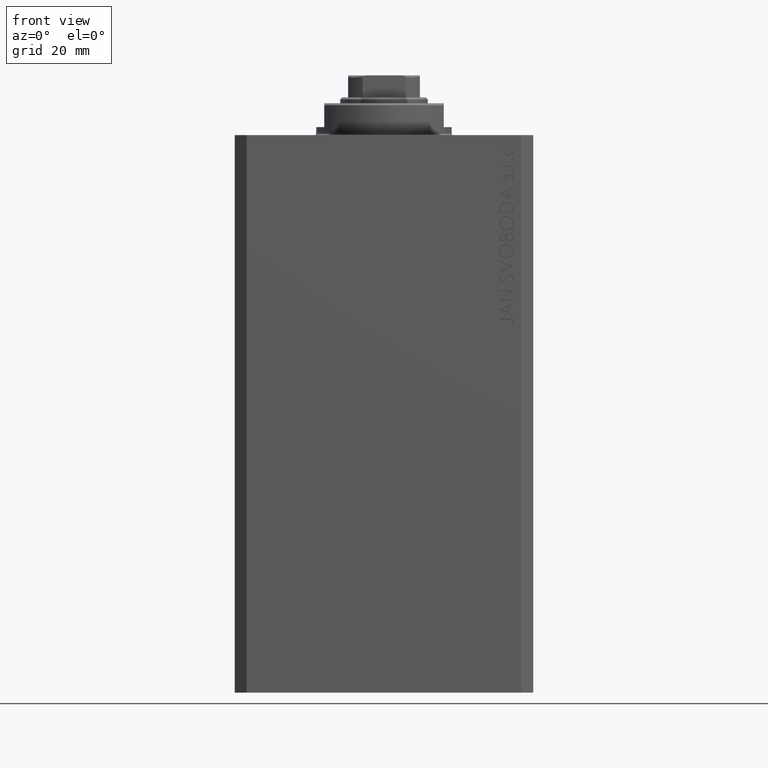
[diagram: clean part render]
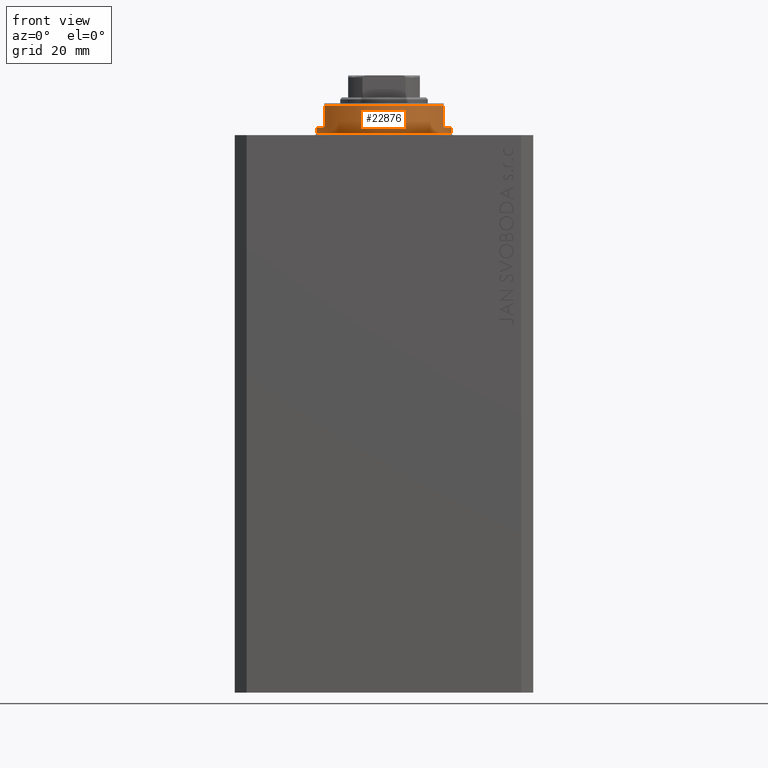
[diagram: same view with one face highlighted and labeled with its STEP entity id]
A machine part, front view. The second image highlights one B-rep face of the part: STEP entity #22876.
In plain terms, the highlighted cylindrical surface (partial cylindrical patch) has radius 17 mm, axis along (0, 0, -1).
Its self-contained STEP definition (entity closure, byte-faithful):
#237 = CYLINDRICAL_SURFACE ( 'NONE', #22639, 17.00000000000000000 ) ;
#2622 = CIRCLE ( 'NONE', #41564, 17.00000000000000000 ) ;
#2678 = CARTESIAN_POINT ( 'NONE',  ( -17.00000000000000000, 2.081899558550500280E-15, -8.000000000000000000 ) ) ;
#2785 = CARTESIAN_POINT ( 'NONE',  ( -15.00000000000000000, -8.000000000000001776, -8.000000000000000000 ) ) ;
#3374 = DIRECTION ( 'NONE',  ( 0.000000000000000000, 0.000000000000000000, -1.000000000000000000 ) ) ;
#3667 = VERTEX_POINT ( 'NONE', #40345 ) ;
#4067 = VERTEX_POINT ( 'NONE', #5834 ) ;
#4586 = EDGE_CURVE ( 'NONE', #4887, #22937, #16653, .T. ) ;
#4887 = VERTEX_POINT ( 'NONE', #32127 ) ;
#5546 = VERTEX_POINT ( 'NONE', #6565 ) ;
#5589 = CIRCLE ( 'NONE', #45310, 17.00000000000000000 ) ;
#5834 = CARTESIAN_POINT ( 'NONE',  ( -15.00000000000000000, -8.000000000000001776, -7.500000000000007105 ) ) ;
#6565 = CARTESIAN_POINT ( 'NONE',  ( -17.00000000000000000, 2.081899558550500280E-15, -2.000000000000000000 ) ) ;
#6816 = CIRCLE ( 'NONE', #44243, 17.00000000000000000 ) ;
#6950 = FACE_OUTER_BOUND ( 'NONE', #20969, .T. ) ;
#7358 = DIRECTION ( 'NONE',  ( -0.000000000000000000, -0.000000000000000000, 1.000000000000000000 ) ) ;
#7414 = CARTESIAN_POINT ( 'NONE',  ( 0.000000000000000000, 0.000000000000000000, -0.5000000000000004441 ) ) ;
#8126 = ORIENTED_EDGE ( 'NONE', *, *, #30019, .T. ) ;
#8453 = DIRECTION ( 'NONE',  ( 0.000000000000000000, 0.000000000000000000, 1.000000000000000000 ) ) ;
#9400 = VECTOR ( 'NONE', #42013, 1000.000000000000000 ) ;
#9692 = VERTEX_POINT ( 'NONE', #43058 ) ;
#10470 = LINE ( 'NONE', #46846, #10661 ) ;
#10529 = DIRECTION ( 'NONE',  ( 1.000000000000000000, 0.000000000000000000, 0.000000000000000000 ) ) ;
#10661 = VECTOR ( 'NONE', #7358, 1000.000000000000000 ) ;
#12028 = VERTEX_POINT ( 'NONE', #23742 ) ;
#12595 = CARTESIAN_POINT ( 'NONE',  ( 15.00000000000000000, -8.000000000000001776, -8.000000000000000000 ) ) ;
#13671 = LINE ( 'NONE', #2678, #40059 ) ;
#13737 = ORIENTED_EDGE ( 'NONE', *, *, #31158, .T. ) ;
#13823 = EDGE_CURVE ( 'NONE', #41080, #5546, #2622, .T. ) ;
#14057 = DIRECTION ( 'NONE',  ( 0.000000000000000000, 0.000000000000000000, -1.000000000000000000 ) ) ;
#14597 = CARTESIAN_POINT ( 'NONE',  ( 0.000000000000000000, 0.000000000000000000, -8.000000000000000000 ) ) ;
#14644 = EDGE_CURVE ( 'NONE', #5546, #9692, #13671, .T. ) ;
#15869 = DIRECTION ( 'NONE',  ( -1.000000000000000000, 0.000000000000000000, 0.000000000000000000 ) ) ;
#16653 = LINE ( 'NONE', #12595, #47072 ) ;
#16989 = ORIENTED_EDGE ( 'NONE', *, *, #46335, .T. ) ;
#19835 = CARTESIAN_POINT ( 'NONE',  ( 15.00000000000000000, -8.000000000000001776, -7.500000000000007105 ) ) ;
#19869 = ORIENTED_EDGE ( 'NONE', *, *, #40660, .F. ) ;
#20825 = CARTESIAN_POINT ( 'NONE',  ( 0.000000000000000000, 0.000000000000000000, -2.000000000000000000 ) ) ;
#20969 = EDGE_LOOP ( 'NONE', ( #40525, #44305, #16989, #40458, #36691, #19869, #13737, #8126 ) ) ;
#22639 = AXIS2_PLACEMENT_3D ( 'NONE', #14597, #25580, #10529 ) ;
#22876 = ADVANCED_FACE ( 'NONE', ( #6950 ), #237, .T. ) ;
#22937 = VERTEX_POINT ( 'NONE', #19835 ) ;
#23267 = CARTESIAN_POINT ( 'NONE',  ( 0.000000000000000000, 0.000000000000000000, -7.500000000000007105 ) ) ;
#23742 = CARTESIAN_POINT ( 'NONE',  ( 17.00000000000000000, 0.000000000000000000, -2.000000000000000000 ) ) ;
#25580 = DIRECTION ( 'NONE',  ( -0.000000000000000000, -0.000000000000000000, 1.000000000000000000 ) ) ;
#28396 = AXIS2_PLACEMENT_3D ( 'NONE', #32229, #14057, #36532 ) ;
#30019 = EDGE_CURVE ( 'NONE', #3667, #9692, #6816, .T. ) ;
#31158 = EDGE_CURVE ( 'NONE', #12028, #3667, #10470, .T. ) ;
#31830 = DIRECTION ( 'NONE',  ( -0.000000000000000000, -0.000000000000000000, 1.000000000000000000 ) ) ;
#32041 = DIRECTION ( 'NONE',  ( -0.000000000000000000, -0.000000000000000000, -1.000000000000000000 ) ) ;
#32127 = CARTESIAN_POINT ( 'NONE',  ( 14.99999999999999645, -8.000000000000003553, -2.000000000000000000 ) ) ;
#32229 = CARTESIAN_POINT ( 'NONE',  ( 0.000000000000000000, 0.000000000000000000, -2.000000000000000000 ) ) ;
#35863 = DIRECTION ( 'NONE',  ( 1.000000000000000000, 0.000000000000000000, 0.000000000000000000 ) ) ;
#36532 = DIRECTION ( 'NONE',  ( -1.000000000000000000, 0.000000000000000000, 0.000000000000000000 ) ) ;
#36601 = DIRECTION ( 'NONE',  ( -1.000000000000000000, 0.000000000000000000, 0.000000000000000000 ) ) ;
#36691 = ORIENTED_EDGE ( 'NONE', *, *, #4586, .F. ) ;
#39586 = CARTESIAN_POINT ( 'NONE',  ( -14.99999999999999645, -8.000000000000003553, -2.000000000000000000 ) ) ;
#40059 = VECTOR ( 'NONE', #31830, 1000.000000000000000 ) ;
#40345 = CARTESIAN_POINT ( 'NONE',  ( 17.00000000000000000, 0.000000000000000000, -0.5000000000000004441 ) ) ;
#40458 = ORIENTED_EDGE ( 'NONE', *, *, #45385, .T. ) ;
#40525 = ORIENTED_EDGE ( 'NONE', *, *, #14644, .F. ) ;
#40660 = EDGE_CURVE ( 'NONE', #12028, #4887, #44442, .T. ) ;
#41080 = VERTEX_POINT ( 'NONE', #39586 ) ;
#41564 = AXIS2_PLACEMENT_3D ( 'NONE', #20825, #3374, #36601 ) ;
#41769 = DIRECTION ( 'NONE',  ( 0.000000000000000000, 0.000000000000000000, -1.000000000000000000 ) ) ;
#42013 = DIRECTION ( 'NONE',  ( 0.000000000000000000, 0.000000000000000000, -1.000000000000000000 ) ) ;
#42711 = LINE ( 'NONE', #2785, #9400 ) ;
#43058 = CARTESIAN_POINT ( 'NONE',  ( -17.00000000000000000, 2.081899558550500280E-15, -0.5000000000000004441 ) ) ;
#44243 = AXIS2_PLACEMENT_3D ( 'NONE', #7414, #32041, #35863 ) ;
#44305 = ORIENTED_EDGE ( 'NONE', *, *, #13823, .F. ) ;
#44442 = CIRCLE ( 'NONE', #28396, 17.00000000000000000 ) ;
#45310 = AXIS2_PLACEMENT_3D ( 'NONE', #23267, #8453, #15869 ) ;
#45385 = EDGE_CURVE ( 'NONE', #4067, #22937, #5589, .T. ) ;
#46335 = EDGE_CURVE ( 'NONE', #41080, #4067, #42711, .T. ) ;
#46846 = CARTESIAN_POINT ( 'NONE',  ( 17.00000000000000000, 0.000000000000000000, -8.000000000000000000 ) ) ;
#47072 = VECTOR ( 'NONE', #41769, 1000.000000000000000 ) ;